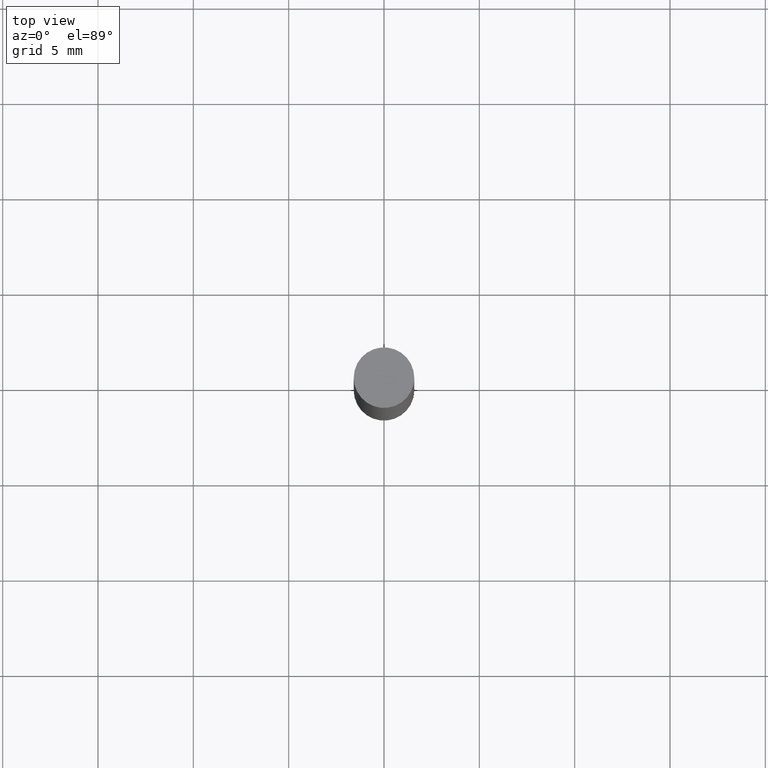
[diagram: clean part render]
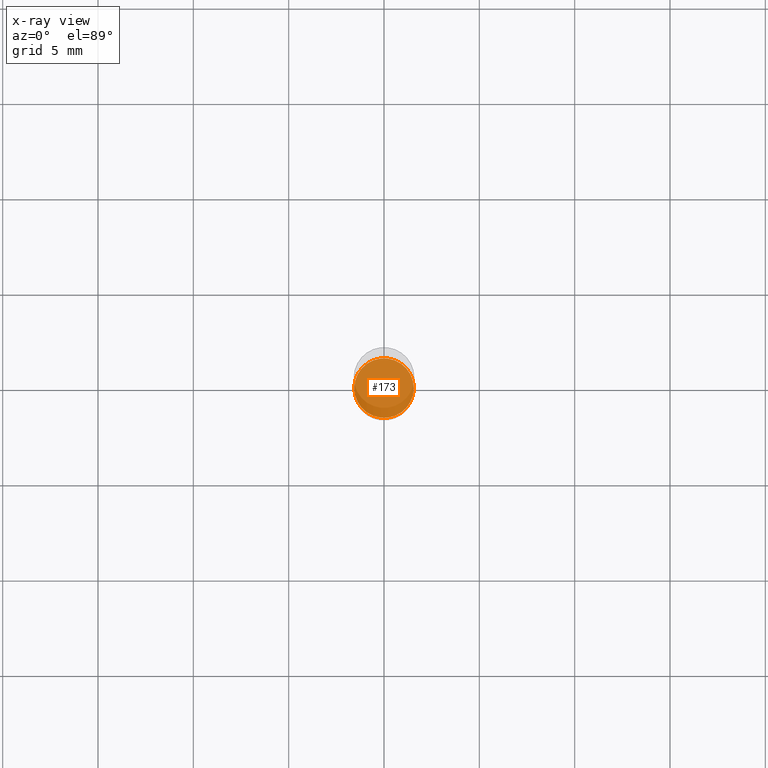
[diagram: x-ray — body ghosted, one internal face saturated and labeled with its STEP entity id]
A machine part, top view, then the same camera in x-ray: the body is ghosted and one INTERNAL B-rep face — a face not visible from any outside direction — is saturated and labeled: STEP entity #173.
In plain terms, the highlighted planar face has unit normal (-0, 0, 1).
Its self-contained STEP definition (entity closure, byte-faithful):
#2 = PLANE ( 'NONE',  #371 ) ;
#11 = CARTESIAN_POINT ( 'NONE',  ( 3.056836007731421306E-29, -4.364351673553932471E-15, -1.250000000000000000 ) ) ;
#134 = EDGE_CURVE ( 'NONE', #404, #232, #422, .T. ) ;
#173 = ADVANCED_FACE ( 'NONE', ( #430 ), #2, .F. ) ;
#224 = AXIS2_PLACEMENT_3D ( 'NONE', #11, #425, #378 ) ;
#232 = VERTEX_POINT ( 'NONE', #352 ) ;
#285 = AXIS2_PLACEMENT_3D ( 'NONE', #300, #450, #399 ) ;
#300 = CARTESIAN_POINT ( 'NONE',  ( 3.056836007731421306E-29, -4.364351673553932471E-15, -1.250000000000000000 ) ) ;
#301 = ORIENTED_EDGE ( 'NONE', *, *, #341, .F. ) ;
#317 = DIRECTION ( 'NONE',  ( 1.000000000000000000, -6.982962677686265922E-15, 4.876176775795935793E-29 ) ) ;
#341 = EDGE_CURVE ( 'NONE', #232, #404, #411, .T. ) ;
#352 = CARTESIAN_POINT ( 'NONE',  ( 0.06150000000000001299, -4.793803878231638126E-15, -1.250000000000000000 ) ) ;
#371 = AXIS2_PLACEMENT_3D ( 'NONE', #534, #385, #317 ) ;
#373 = EDGE_LOOP ( 'NONE', ( #301, #485 ) ) ;
#378 = DIRECTION ( 'NONE',  ( 1.000000000000000000, -6.982962677686268288E-15, 0.000000000000000000 ) ) ;
#385 = DIRECTION ( 'NONE',  ( -2.438088387897960049E-29, 3.491481338843145188E-15, 1.000000000000000000 ) ) ;
#399 = DIRECTION ( 'NONE',  ( 1.000000000000000000, -6.982962677686268288E-15, 0.000000000000000000 ) ) ;
#404 = VERTEX_POINT ( 'NONE', #533 ) ;
#411 = CIRCLE ( 'NONE', #285, 0.06150000000000001299 ) ;
#422 = CIRCLE ( 'NONE', #224, 0.06150000000000001299 ) ;
#425 = DIRECTION ( 'NONE',  ( -2.445468806185136597E-29, 3.491481338843145583E-15, 1.000000000000000000 ) ) ;
#430 = FACE_OUTER_BOUND ( 'NONE', #373, .T. ) ;
#450 = DIRECTION ( 'NONE',  ( -2.445468806185136597E-29, 3.491481338843145583E-15, 1.000000000000000000 ) ) ;
#485 = ORIENTED_EDGE ( 'NONE', *, *, #134, .F. ) ;
#533 = CARTESIAN_POINT ( 'NONE',  ( -0.06150000000000001299, -3.922069436713247672E-15, -1.250000000000000000 ) ) ;
#534 = CARTESIAN_POINT ( 'NONE',  ( 3.056836007731421306E-29, -4.364351673553932471E-15, -1.250000000000000000 ) ) ;